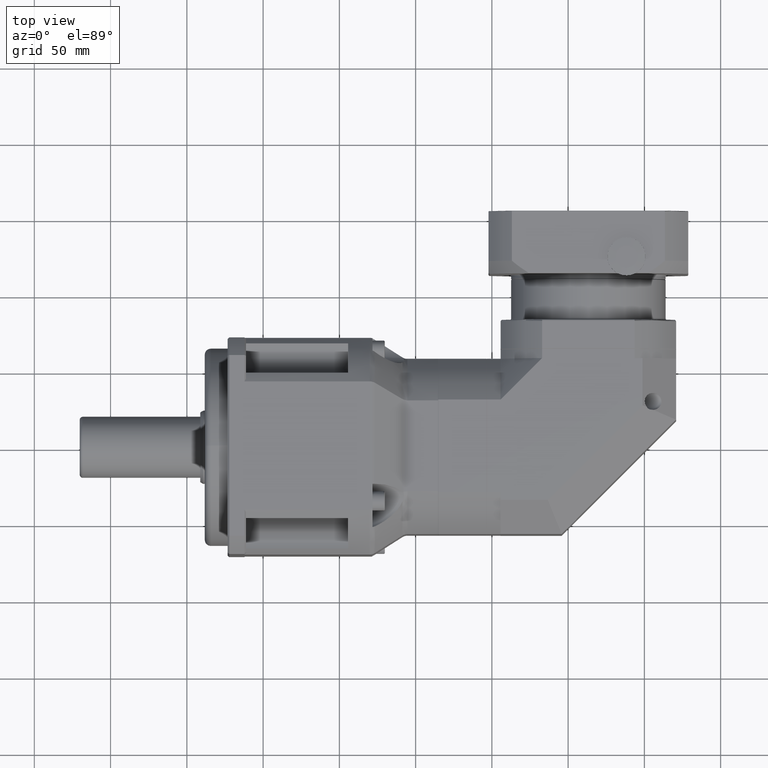
[diagram: clean part render]
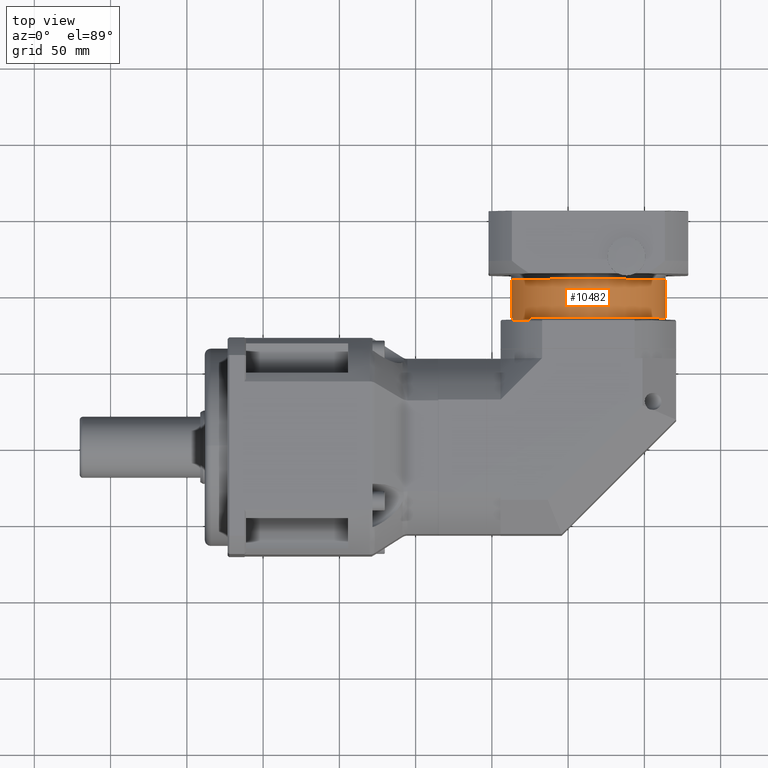
[diagram: same view with one face highlighted and labeled with its STEP entity id]
A machine part, top view. The second image highlights one B-rep face of the part: STEP entity #10482.
In plain terms, the highlighted cylindrical surface (bore or boss wall) has radius 51 mm, axis along (-0, 1, -0).
Its self-contained STEP definition (entity closure, byte-faithful):
#2140=FACE_BOUND('',#3592,.T.);
#2654=FACE_OUTER_BOUND('',#3591,.T.);
#3591=EDGE_LOOP('',(#8105));
#3592=EDGE_LOOP('',(#8106));
#4310=CIRCLE('',#11528,51.);
#4320=CIRCLE('',#11540,51.);
#5017=VERTEX_POINT('',#17082);
#5031=VERTEX_POINT('',#17112);
#6126=EDGE_CURVE('',#5017,#5017,#4310,.T.);
#6140=EDGE_CURVE('',#5031,#5031,#4320,.T.);
#8105=ORIENTED_EDGE('',*,*,#6140,.F.);
#8106=ORIENTED_EDGE('',*,*,#6126,.F.);
#9519=CYLINDRICAL_SURFACE('',#11539,51.);
#10482=ADVANCED_FACE('',(#2654,#2140),#9519,.T.);
#11528=AXIS2_PLACEMENT_3D('',#17083,#13694,#13695);
#11539=AXIS2_PLACEMENT_3D('',#17111,#13720,#13721);
#11540=AXIS2_PLACEMENT_3D('',#17113,#13722,#13723);
#13694=DIRECTION('center_axis',(2.07217055953794E-16,-1.,6.95130914991807E-15));
#13695=DIRECTION('ref_axis',(3.23352455922075E-15,6.95130914991807E-15,
1.));
#13720=DIRECTION('center_axis',(-2.07217055953794E-16,1.,-6.95130914991807E-15));
#13721=DIRECTION('ref_axis',(3.23352455922075E-15,6.95130914991807E-15,
1.));
#13722=DIRECTION('center_axis',(-2.07217055953794E-16,1.,-6.95130914991807E-15));
#13723=DIRECTION('ref_axis',(3.23352455922075E-15,6.95130914991807E-15,
1.));
#17082=CARTESIAN_POINT('',(13.2675868156286,135.141832456553,-165.027779989657));
#17083=CARTESIAN_POINT('Origin',(13.2675868156288,135.141832456553,-114.027779989657));
#17111=CARTESIAN_POINT('Origin',(13.2675868156288,133.641832456553,-114.027779989657));
#17112=CARTESIAN_POINT('',(13.2675868156286,160.141832456553,-165.027779989657));
#17113=CARTESIAN_POINT('Origin',(13.2675868156288,160.141832456553,-114.027779989657));